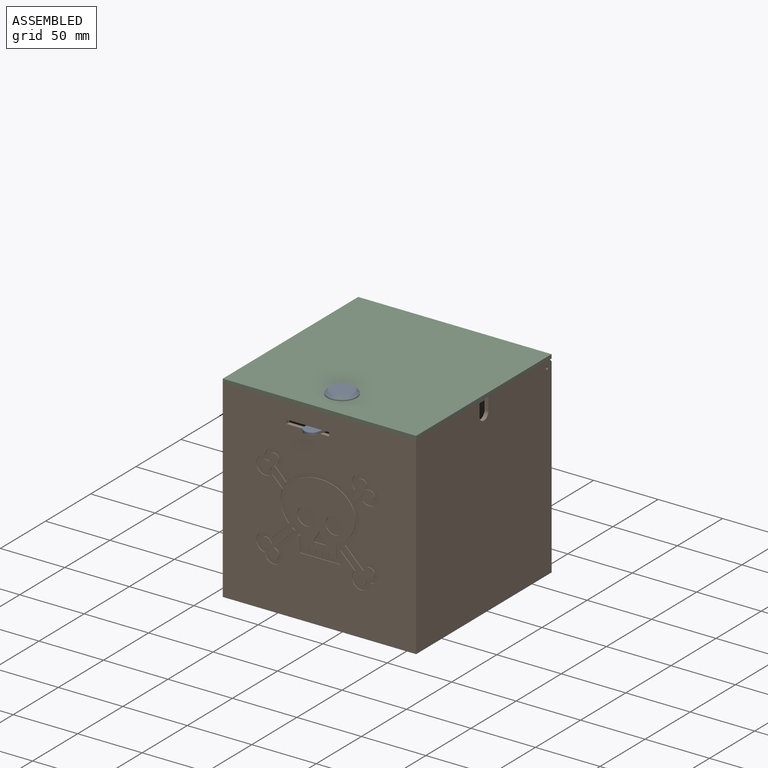
[diagram: assembled view]
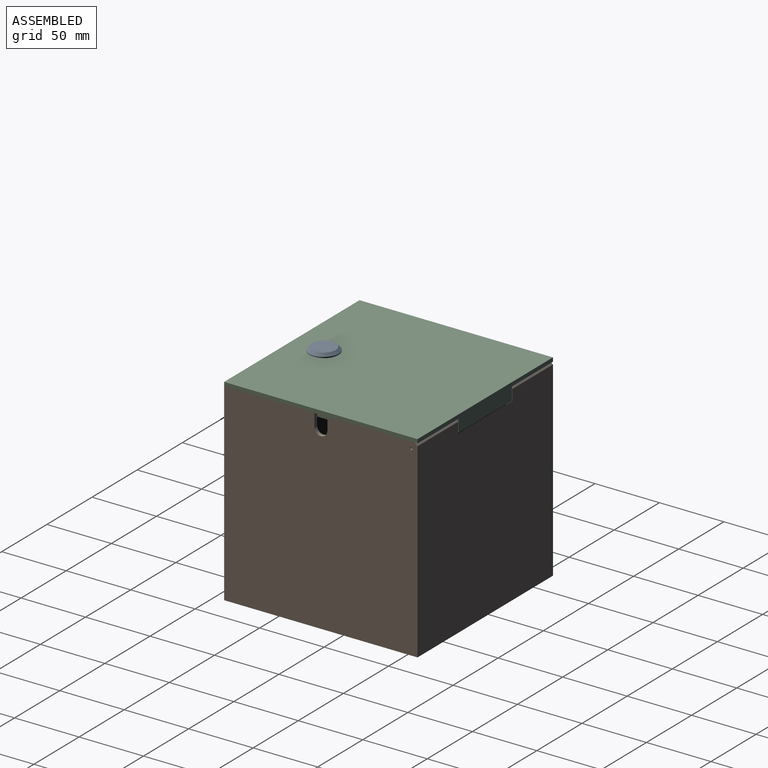
[diagram: assembled view, second angle]
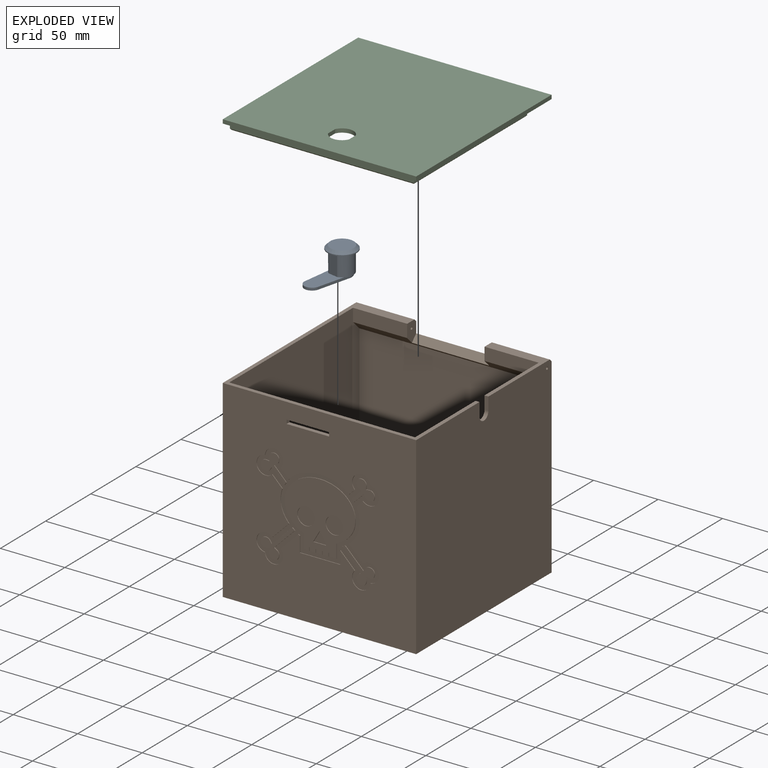
[diagram: exploded view]
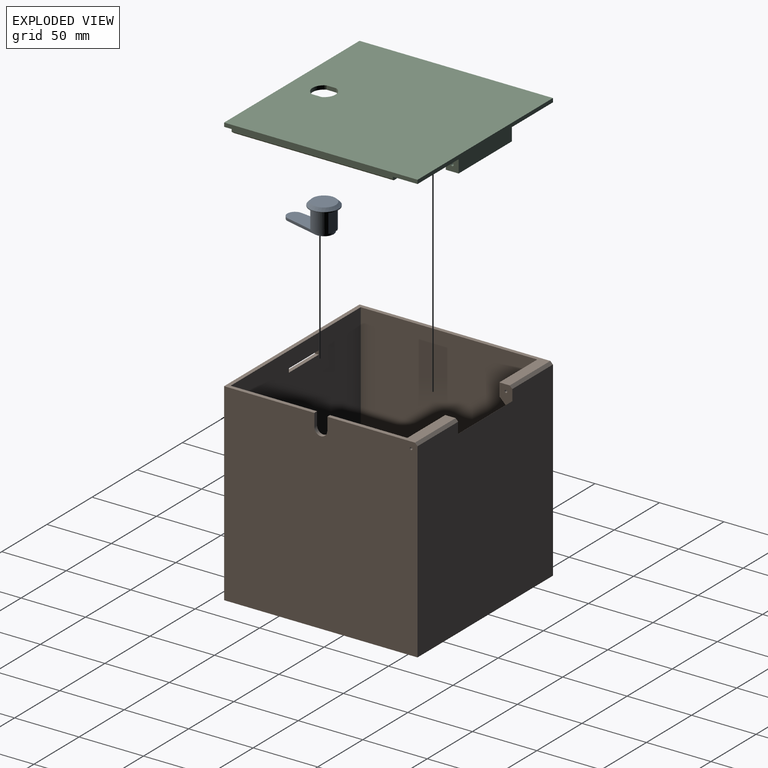
[diagram: exploded view, second angle]
ASSEMBLY  parts=3 mates=2
PART A: 15 faces, bbox 43.8x22.6x20.9 mm
  f0: cylinder r=8.8mm len=16mm, axis (0,0,1), area 315.7mm2, adj f1,f5,f7,f8,f9
  f1: plane 17.6x12.96mm, normal (0,0,-1), area 38.1mm2, adj f0,f6,f7,f10,f11,f13
  f2: cone r=11.3mm half-angle=45deg, axis (0,0,-1), area 199.4mm2, adj f3,f4
  f3: plane 18.2x18.2mm, normal (0,0,1), area 260.2mm2, adj f2
  f4: cylinder r=11.3mm len=22.6mm, axis (0,0,1), area 49.7mm2, adj f2,f5
  f5: plane 22.6x22.6mm, normal (0,0,-1), area 166.9mm2, adj f0,f4,f6,f7,f8
  f6: cylinder r=8.8mm len=16mm, axis (0,0,1), area 315.7mm2, adj f1,f5,f7,f8,f9
  f7: plane 16x7.65mm, normal (1,0,0), area 122.4mm2, adj f0,f1,f5,f6
  f8: plane 16x7.65mm, normal (-1,0,0), area 122.4mm2, adj f0,f5,f6,f9
  f9: plane 27.48x14.44mm, normal (0,0,1), area 306.7mm2, adj f0,f6,f8,f11,f12,f13
  f10: cylinder r=7.5mm len=15mm, axis (0,0,1), area 49.7mm2, adj f1,f11,f13,f14
  f11: plane 25.65x2mm, normal (-0.06,-1,0), area 51.4mm2, adj f1,f9,f10,f12,f14
  f12: cylinder r=6mm len=12mm, axis (0,0,1), area 37.7mm2, adj f9,f11,f13,f14
  f13: plane 26.07x2mm, normal (-0.06,1,0), area 52.2mm2, adj f1,f9,f10,f12,f14
  f14: plane 40x15mm, normal (0,0,-1), area 502.8mm2, adj f10,f11,f12,f13
PART B: 281 faces, bbox 150x150x150 mm
  f0: plane 150x150mm, normal (0,-1,0), area 18094.8mm2, adj f2,f6,f8,f9,f23,f24,f25,f26
  f1: plane 147x144mm, normal (0,1,0), area 21069mm2, adj f2,f4,f10,f11,f23,f24,f25,f26
  f2: plane 150x148mm, normal (0,0,1), area 1422mm2, adj f0,f1,f4,f6,f8,f10,f15,f18
  f3: plane 144x130mm, normal (0,-1,0), area 18720mm2, adj f4,f10,f11,f280
  f4: plane 147x144mm, normal (-1,0,0), area 20934.2mm2, adj f1,f2,f3,f5,f11,f15,f16,f17
  f5: plane 68x45mm, normal (0,0,1), area 540mm2, adj f4,f8,f17,f20,f21,f279
  f6: plane 150x150mm, normal (-1,0,0), area 20129.9mm2, adj f0,f2,f7,f9,f11,f12,f13,f14
  f7: plane 150x148mm, normal (0,1,0), area 21690mm2, adj f6,f8,f9,f18,f20,f22,f278,f279
  f8: plane 150x150mm, normal (1,0,0), area 22355.6mm2, adj f0,f2,f5,f7,f9,f15,f16,f17
  f9: plane 150x150mm, normal (0,0,-1), area 22500mm2, adj f0,f6,f7,f8
  f10: plane 147x144mm, normal (1,0,0), area 18708.5mm2, adj f1,f2,f3,f11,f12,f13,f14,f19
  f11: plane 147x144mm, normal (0,0,1), area 20901mm2, adj f1,f3,f4,f6,f10,f12,f14
  f12: plane 43x3mm, normal (0,1,0), area 129mm2, adj f6,f10,f11,f13
  f13: plane 55x3mm, normal (0,0,-1), area 165mm2, adj f6,f10,f12,f14
  f14: plane 43x3mm, normal (0,-1,0), area 129mm2, adj f6,f10,f11,f13
  f15: plane 10x3mm, normal (0,1,0), area 30mm2, adj f2,f4,f8,f16
  f16: cylinder r=5mm len=10mm, axis (1,0,0), area 47.1mm2, adj f4,f8,f15,f17
  f17: plane 10x3mm, normal (0,-1,0), area 30mm2, adj f4,f5,f8,f16
  f18: plane 15.25x10mm, normal (1,0,0), area 122.3mm2, adj f2,f7,f19,f22,f28,f278,f280
  f19: plane 42x10mm, normal (0,-1,0), area 420mm2, adj f2,f10,f18,f280
  f20: plane 15.25x10mm, normal (-1,0,0), area 122.3mm2, adj f5,f7,f21,f22,f27,f279,f280
  f21: plane 42x10mm, normal (0,-1,0), area 420mm2, adj f4,f5,f20,f280
  f22: plane 60x4.75mm, normal (0,-0.71,0.71), area 403.1mm2, adj f7,f18,f20,f280
  f23: plane 33x3mm, normal (0,0,-1), area 99mm2, adj f0,f1,f24,f26
  f24: plane 3x3mm, normal (1,0,0), area 9mm2, adj f0,f1,f23,f25
  f25: plane 33x3mm, normal (0,0,1), area 99mm2, adj f0,f1,f24,f26
  f26: plane 3x3mm, normal (-1,0,0), area 9mm2, adj f0,f1,f23,f25
  f27: cylinder r=1mm len=45mm, axis (1,0,0), area 282.7mm2, adj f8,f20
  f28: cylinder r=1mm len=45mm, axis (1,0,0), area 282.7mm2, adj f6,f18
  f29: plane 5.59x5.59mm, normal (0.71,0,0.71), area 4mm2, adj f0,f30,f240,f241
  f30: plane 5.59x5.59mm, normal (0.71,0,0.71), area 4mm2, adj f0,f29,f31,f241
  f31: plane 0.64x0.5mm, normal (0.8,0,-0.6), area 0.4mm2, adj f0,f30,f32,f241
  f32: extruded ~2.42x1.25mm, area 1.4mm2, adj f0,f31,f33,f241
  f33: extruded ~1.98x0.5mm, area 1mm2, adj f0,f32,f34,f241
  f34: extruded ~3.26x0.7mm, area 1.7mm2, adj f0,f33,f35,f241
  f35: extruded ~3.31x3.25mm, area 2.4mm2, adj f0,f34,f36,f241
  f36: plane 0.9x0.5mm, normal (0.44,0,0.9), area 0.5mm2, adj f0,f35,f37,f241
  f37: extruded ~3.91x0.5mm, area 2mm2, adj f0,f36,f38,f241
  f38: plane 0.73x0.5mm, normal (-0.37,0,0.93), area 0.4mm2, adj f0,f37,f39,f241
  f39: extruded ~3.43x2.83mm, area 2.3mm2, adj f0,f38,f40,f241
  f40: extruded ~2.87x1.05mm, area 1.5mm2, adj f0,f39,f41,f241
  f41: extruded ~0.87x0.5mm, area 0.6mm2, adj f0,f40,f42,f241
  f42: extruded ~5.09x4.24mm, area 3.5mm2, adj f0,f41,f43,f241
  f43: extruded ~5.15x0.5mm, area 2.6mm2, adj f0,f42,f44,f241
  f44: extruded ~3.97x3.97mm, area 2.9mm2, adj f0,f43,f45,f241
  f45: extruded ~7.39x1.69mm, area 3.9mm2, adj f0,f44,f46,f241
  f46: plane 0.5x0.38mm, normal (0.65,0,-0.76), area 0.2mm2, adj f0,f45,f47,f241
  f47: plane 5.52x5.52mm, normal (-0.71,0,-0.71), area 3.9mm2, adj f0,f46,f48,f241
  f48: plane 5.52x5.52mm, normal (-0.71,0,-0.71), area 3.9mm2, adj f0,f47,f49,f241
  f49: plane 1.2x1.19mm, normal (-0.7,0,0.71), area 0.8mm2, adj f0,f48,f50,f241
  f50: extruded ~13.71x7.03mm, area 7.9mm2, adj f0,f49,f51,f241
  f51: extruded ~5.61x0.5mm, area 2.8mm2, adj f0,f50,f52,f241
  f52: extruded ~6.34x1.93mm, area 3.3mm2, adj f0,f51,f53,f241
  f53: plane 0.93x0.5mm, normal (-0.9,0,-0.43), area 0.5mm2, adj f0,f52,f54,f241
  f54: plane 2.62x2.62mm, normal (-0.71,0,0.71), area 1.8mm2, adj f0,f53,f55,f241
  f55: plane 2.62x2.62mm, normal (-0.71,0,0.71), area 1.8mm2, adj f0,f54,f56,f241
  f56: plane 0.5x0.26mm, normal (0.63,0,0.78), area 0.2mm2, adj f0,f55,f57,f241
  f57: extruded ~3.05x1.59mm, area 1.7mm2, adj f0,f56,f58,f241
  f58: extruded ~3.5x0.5mm, area 1.8mm2, adj f0,f57,f59,f241
  f59: extruded ~5.02x4.58mm, area 3.5mm2, adj f0,f58,f60,f241
  f60: extruded ~4.6x0.5mm, area 2.4mm2, adj f0,f59,f61,f241
  f61: extruded ~5.7x4.73mm, area 3.9mm2, adj f0,f60,f62,f241
  f62: extruded ~0.5x0.35mm, area 0.3mm2, adj f0,f61,f63,f241
  f63: extruded ~0.92x0.5mm, area 0.5mm2, adj f0,f62,f64,f241
  f64: extruded ~4.74x4.29mm, area 3.3mm2, adj f0,f63,f65,f241
  f65: extruded ~5.25x0.5mm, area 2.7mm2, adj f0,f64,f66,f241
  f66: extruded ~5.2x4.22mm, area 3.5mm2, adj f0,f65,f67,f241
  f67: extruded ~3.32x0.5mm, area 1.7mm2, adj f0,f66,f68,f241
  f68: extruded ~2.44x1.21mm, area 1.4mm2, adj f0,f67,f69,f241
  f69: extruded ~0.62x0.5mm, area 0.4mm2, adj f0,f68,f70,f241
  f70: extruded ~2.38x2.17mm, area 1.6mm2, adj f0,f69,f71,f241
  f71: plane 2.25x2.25mm, normal (0.71,0,-0.71), area 1.6mm2, adj f0,f70,f72,f241
  f72: plane 0.96x0.77mm, normal (-0.63,0,-0.78), area 0.6mm2, adj f0,f71,f73,f241
  f73: extruded ~17.64x7.01mm, area 9.6mm2, adj f0,f72,f74,f241
  f74: extruded ~7.04x0.5mm, area 3.5mm2, adj f0,f73,f75,f241
  f75: extruded ~20.1x8.77mm, area 11.2mm2, adj f0,f74,f76,f241
  f76: plane 1x0.96mm, normal (0.69,0,-0.72), area 0.7mm2, adj f0,f75,f77,f241
  f77: plane 3.2x3.2mm, normal (-0.71,0,-0.71), area 2.3mm2, adj f0,f76,f78,f241
  f78: extruded ~3.33x3.12mm, area 2.3mm2, adj f0,f77,f79,f241
  f79: extruded ~0.62x0.5mm, area 0.4mm2, adj f0,f78,f80,f241
  f80: extruded ~2.44x1.21mm, area 1.4mm2, adj f0,f79,f81,f241
  f81: extruded ~3.32x0.5mm, area 1.7mm2, adj f0,f80,f82,f241
  f82: extruded ~5.02x3.82mm, area 3.3mm2, adj f0,f81,f83,f241
  f83: plane 0.9x0.5mm, normal (-0.44,0,-0.9), area 0.5mm2, adj f0,f82,f84,f241
  f84: extruded ~4.02x0.5mm, area 2mm2, adj f0,f83,f85,f241
  f85: plane 0.74x0.5mm, normal (0.36,0,-0.93), area 0.4mm2, adj f0,f84,f86,f241
  f86: extruded ~5.13x4.26mm, area 3.5mm2, adj f0,f85,f87,f241
  f87: plane 0.72x0.5mm, normal (0.98,0,-0.2), area 0.4mm2, adj f0,f86,f88,f241
  f88: plane 0.77x0.5mm, normal (0.2,0,-0.98), area 0.4mm2, adj f0,f87,f89,f241
  f89: extruded ~3.18x1.54mm, area 1.8mm2, adj f0,f88,f90,f241
  f90: extruded ~3.1x2.17mm, area 1.9mm2, adj f0,f89,f91,f241
  f91: extruded ~4.6x0.5mm, area 2.3mm2, adj f0,f90,f92,f241
  f92: extruded ~5.02x4.58mm, area 3.5mm2, adj f0,f91,f93,f241
  f93: extruded ~3.5x0.5mm, area 1.8mm2, adj f0,f92,f94,f241
  f94: extruded ~3.05x1.59mm, area 1.7mm2, adj f0,f93,f95,f241
  f95: plane 0.5x0.26mm, normal (-0.63,0,0.78), area 0.2mm2, adj f0,f94,f96,f241
  f96: plane 3.92x3.92mm, normal (0.71,0,0.71), area 2.8mm2, adj f0,f95,f97,f241
  f97: plane 3.92x3.92mm, normal (0.71,0,0.71), area 2.8mm2, adj f0,f96,f98,f241
  f98: plane 0.84x0.5mm, normal (0.95,0,-0.32), area 0.4mm2, adj f0,f97,f99,f241
  f99: extruded ~3.79x0.91mm, area 2mm2, adj f0,f98,f100,f241
  f100: extruded ~5.94x0.5mm, area 3mm2, adj f0,f99,f101,f241
  f101: extruded ~12.01x5.77mm, area 6.8mm2, adj f0,f100,f102,f241
  f102: plane 0.64x0.56mm, normal (0.75,0,0.66), area 0.4mm2, adj f0,f101,f103,f241
  f103: plane 6.49x6.49mm, normal (0.71,0,-0.71), area 4.6mm2, adj f0,f102,f104,f241
  f104: plane 6.49x6.49mm, normal (0.71,0,-0.71), area 4.6mm2, adj f0,f103,f105,f241
  f105: plane 0.5x0.26mm, normal (-0.67,0,-0.74), area 0.2mm2, adj f0,f104,f106,f241
  f106: extruded ~2.72x1.5mm, area 1.6mm2, adj f0,f105,f107,f241
  f107: extruded ~3.52x0.5mm, area 1.8mm2, adj f0,f106,f108,f241
  f108: extruded ~5.23x4.35mm, area 3.5mm2, adj f0,f107,f109,f241
  f109: extruded ~5.13x0.5mm, area 2.6mm2, adj f0,f108,f110,f241
  f110: extruded ~5.31x4.3mm, area 3.6mm2, adj f0,f109,f111,f241
  f111: plane 0.72x0.5mm, normal (0.16,0,0.99), area 0.4mm2, adj f0,f110,f112,f241
  f112: plane 0.72x0.5mm, normal (0.99,0,0.16), area 0.4mm2, adj f0,f111,f113,f241
  f113: extruded ~5.31x4.28mm, area 3.6mm2, adj f0,f112,f114,f241
  f114: plane 0.69x0.5mm, normal (0.38,0,0.92), area 0.4mm2, adj f0,f113,f115,f241
  f115: extruded ~3.97x0.5mm, area 2mm2, adj f0,f114,f116,f241
  f116: plane 0.9x0.5mm, normal (-0.44,0,0.9), area 0.5mm2, adj f0,f115,f117,f241
  f117: extruded ~3.31x3.25mm, area 2.4mm2, adj f0,f116,f118,f241
  f118: extruded ~3.26x0.7mm, area 1.7mm2, adj f0,f117,f119,f241
  f119: extruded ~1.98x0.5mm, area 1mm2, adj f0,f118,f120,f241
  f120: extruded ~2.42x1.25mm, area 1.4mm2, adj f0,f119,f121,f241
  f121: plane 0.64x0.5mm, normal (-0.8,0,-0.6), area 0.4mm2, adj f0,f120,f122,f241
  f122: plane 6.9x6.9mm, normal (-0.71,0,0.71), area 4.9mm2, adj f0,f121,f123,f241
  f123: plane 6.9x6.9mm, normal (-0.71,0,0.71), area 4.9mm2, adj f0,f122,f124,f241
  f124: plane 1.35x0.68mm, normal (0.45,0,0.89), area 0.8mm2, adj f0,f123,f125,f241
  f125: plane 11.91x0.5mm, normal (1,0,0), area 6mm2, adj f0,f124,f126,f241
  f126: plane 31.29x0.5mm, normal (0,0,1), area 15.6mm2, adj f0,f125,f240,f241
  f127: extruded ~3.32x0.5mm, area 1.7mm2, adj f128,f235,f241,f246
  f128: extruded ~4.31x2.37mm, area 2.6mm2, adj f127,f129,f241,f246
  f129: extruded ~3.12x2.72mm, area 2.2mm2, adj f128,f130,f241,f246
  f130: extruded ~2.68x0.5mm, area 1.4mm2, adj f129,f131,f241,f246
  f131: extruded ~2.52x2.41mm, area 1.8mm2, adj f130,f132,f241,f246
  f132: extruded ~1.04x0.65mm, area 0.6mm2, adj f131,f133,f241,f246
  f133: extruded ~7.3x7.19mm, area 5.1mm2, adj f132,f134,f241,f246
  f134: extruded ~7.39x7.23mm, area 5.2mm2, adj f133,f135,f241,f246
  f135: extruded ~0.5x0.17mm, area 0.1mm2, adj f134,f136,f241,f246
  f136: extruded ~1.04x0.61mm, area 0.6mm2, adj f135,f137,f241,f246
  f137: extruded ~1.08x0.61mm, area 0.6mm2, adj f136,f138,f241,f246
  f138: extruded ~7.15x7.04mm, area 5mm2, adj f137,f139,f241,f246
  f139: extruded ~7.11x7mm, area 5mm2, adj f138,f140,f241,f246
  f140: extruded ~1.12x0.7mm, area 0.7mm2, adj f139,f141,f241,f246
  f141: extruded ~3.23x2.5mm, area 2.1mm2, adj f140,f142,f241,f246
  f142: extruded ~3.49x1.08mm, area 1.9mm2, adj f141,f143,f241,f246
  f143: extruded ~5.6x1.23mm, area 3.1mm2, adj f142,f144,f241,f246
  f144: extruded ~4.35x1.09mm, area 2.3mm2, adj f143,f145,f241,f246
  f145: extruded ~1.2x0.5mm, area 0.6mm2, adj f144,f235,f241,f246
  f146: extruded ~3.29x1mm, area 1.8mm2, adj f147,f236,f241,f245
  f147: extruded ~2.86x2.11mm, area 1.8mm2, adj f146,f148,f241,f245
  f148: extruded ~4x0.5mm, area 2mm2, adj f147,f149,f241,f245
  f149: plane 0.76x0.5mm, normal (-0.99,0,0.16), area 0.4mm2, adj f148,f150,f241,f245
  f150: plane 1.14x0.5mm, normal (0.16,0,-0.99), area 0.6mm2, adj f149,f151,f241,f245
  f151: extruded ~2.09x0.5mm, area 1mm2, adj f150,f152,f241,f245
  f152: extruded ~1.57x0.5mm, area 0.8mm2, adj f151,f153,f241,f245
  f153: extruded ~6.35x2.11mm, area 3.7mm2, adj f152,f154,f241,f245
  f154: extruded ~3.49x1.08mm, area 1.9mm2, adj f153,f155,f241,f245
  f155: extruded ~3.23x2.5mm, area 2.1mm2, adj f154,f156,f241,f245
  f156: extruded ~1.12x0.7mm, area 0.7mm2, adj f155,f157,f241,f245
  f157: extruded ~7.96x7.85mm, area 5.6mm2, adj f156,f158,f241,f245
  f158: extruded ~8x7.89mm, area 5.6mm2, adj f157,f159,f241,f245
  f159: extruded ~2.02x1.6mm, area 1.3mm2, adj f158,f160,f241,f245
  f160: extruded ~8.13x7.98mm, area 5.7mm2, adj f159,f161,f241,f245
  f161: extruded ~8.05x7.94mm, area 5.7mm2, adj f160,f162,f241,f245
  f162: extruded ~1.04x0.65mm, area 0.6mm2, adj f161,f163,f241,f245
  f163: extruded ~1.94x1.58mm, area 1.3mm2, adj f162,f164,f241,f245
  f164: extruded ~2.3x0.65mm, area 1.2mm2, adj f163,f236,f241,f245
  f165: plane 4.16x0.5mm, normal (0,0,-1), area 2.1mm2, adj f166,f237,f241,f244
  f166: plane 10.75x0.5mm, normal (-1,0,0), area 5.4mm2, adj f165,f167,f241,f244
  f167: plane 1.06x0.5mm, normal (-0.43,0,-0.91), area 0.6mm2, adj f166,f168,f241,f244
  f168: extruded ~14x13.11mm, area 9.9mm2, adj f167,f169,f241,f244
  f169: extruded ~5.93x0.75mm, area 3mm2, adj f168,f170,f241,f244
  f170: extruded ~7.45x1.86mm, area 3.9mm2, adj f169,f171,f241,f244
  f171: extruded ~6.05x4.46mm, area 3.8mm2, adj f170,f172,f241,f244
  f172: extruded ~17.29x7.77mm, area 9.6mm2, adj f171,f173,f241,f244
  f173: extruded ~7.85x0.5mm, area 3.9mm2, adj f172,f174,f241,f244
  f174: extruded ~21.25x13.11mm, area 13mm2, adj f173,f175,f241,f244
  f175: extruded ~19.29x3.17mm, area 10.1mm2, adj f174,f176,f241,f244
  f176: extruded ~10.51x8.79mm, area 6.9mm2, adj f175,f177,f241,f244
  f177: plane 1.06x0.5mm, normal (0.43,0,-0.91), area 0.6mm2, adj f176,f178,f241,f244
  f178: plane 10.75x0.5mm, normal (1,0,0), area 5.4mm2, adj f177,f179,f241,f244
  f179: plane 5.11x0.5mm, normal (0,0,-1), area 2.6mm2, adj f178,f180,f241,f244
  f180: plane 2.74x0.5mm, normal (-1,0,0), area 1.4mm2, adj f179,f181,f241,f244
  f181: plane 1.04x0.5mm, normal (0,0,-1), area 0.5mm2, adj f180,f182,f241,f244
  f182: plane 2.74x0.5mm, normal (1,0,0), area 1.4mm2, adj f181,f183,f241,f244
  f183: plane 3.97x0.5mm, normal (0,0,-1), area 2mm2, adj f182,f184,f241,f244
  f184: plane 2.74x0.5mm, normal (-1,0,0), area 1.4mm2, adj f183,f185,f241,f244
  f185: plane 1.04x0.5mm, normal (0,0,-1), area 0.5mm2, adj f184,f186,f241,f244
  f186: plane 2.74x0.5mm, normal (1,0,0), area 1.4mm2, adj f185,f187,f241,f244
  f187: plane 3.97x0.5mm, normal (0,0,-1), area 2mm2, adj f186,f188,f241,f244
  f188: plane 2.74x0.5mm, normal (-1,0,0), area 1.4mm2, adj f187,f189,f241,f244
  f189: plane 1.04x0.5mm, normal (0,0,-1), area 0.5mm2, adj f188,f190,f241,f244
  f190: plane 2.74x0.5mm, normal (1,0,0), area 1.4mm2, adj f189,f191,f241,f244
  f191: plane 3.97x0.5mm, normal (0,0,-1), area 2mm2, adj f190,f192,f241,f244
  f192: plane 2.74x0.5mm, normal (-1,0,0), area 1.4mm2, adj f191,f193,f241,f244
  f193: plane 0.95x0.5mm, normal (0,0,-1), area 0.5mm2, adj f192,f237,f241,f244
  f194: extruded ~1.81x0.5mm, area 0.9mm2, adj f195,f238,f241,f243
  f195: extruded ~1.82x0.5mm, area 0.9mm2, adj f194,f196,f241,f243
  f196: extruded ~2.23x2.11mm, area 1.6mm2, adj f195,f197,f241,f243
  f197: plane 1.11x0.66mm, normal (0.51,0,-0.86), area 0.6mm2, adj f196,f198,f241,f243
  f198: plane 4.68x4.68mm, normal (0.71,0,0.71), area 3.3mm2, adj f197,f199,f241,f243
  f199: extruded ~4.86x4.68mm, area 3.4mm2, adj f198,f200,f241,f243
  f200: extruded ~0.98x0.53mm, area 0.6mm2, adj f199,f201,f241,f243
  f201: extruded ~1.03x0.63mm, area 0.6mm2, adj f200,f202,f241,f243
  f202: extruded ~0.5x0.26mm, area 0.2mm2, adj f201,f203,f241,f243
  f203: extruded ~5.02x4.87mm, area 3.5mm2, adj f202,f204,f241,f243
  f204: extruded ~4.92x4.87mm, area 3.5mm2, adj f203,f205,f241,f243
  f205: extruded ~1.21x0.77mm, area 0.7mm2, adj f204,f206,f241,f243
  f206: extruded ~3.6x2.46mm, area 2.3mm2, adj f205,f207,f241,f243
  f207: extruded ~4.23x3.33mm, area 3mm2, adj f206,f208,f241,f243
  f208: extruded ~4.6x3.53mm, area 3.2mm2, adj f207,f209,f241,f243
  f209: extruded ~1.99x0.5mm, area 1mm2, adj f208,f210,f241,f243
  f210: extruded ~1.31x0.5mm, area 0.7mm2, adj f209,f211,f241,f243
  f211: extruded ~1.18x0.5mm, area 0.6mm2, adj f210,f212,f241,f243
  f212: extruded ~3.32x0.5mm, area 1.7mm2, adj f211,f213,f241,f243
  f213: extruded ~1.64x1.61mm, area 1.2mm2, adj f212,f214,f241,f243
  f214: extruded ~3.7x0.5mm, area 1.9mm2, adj f213,f238,f241,f243
  f215: extruded ~0.97x0.85mm, area 0.6mm2, adj f216,f239,f241,f242
  f216: extruded ~1.09x0.79mm, area 0.7mm2, adj f215,f217,f241,f242
  f217: extruded ~3.78x3.62mm, area 2.6mm2, adj f216,f218,f241,f242
  f218: plane 3.65x3.65mm, normal (-0.71,0,0.71), area 2.6mm2, adj f217,f219,f241,f242
  f219: plane 1.11x0.66mm, normal (-0.51,0,-0.86), area 0.6mm2, adj f218,f220,f241,f242
  f220: extruded ~2.23x2.11mm, area 1.6mm2, adj f219,f221,f241,f242
  f221: extruded ~1.82x0.5mm, area 0.9mm2, adj f220,f222,f241,f242
  f222: extruded ~1.8x0.5mm, area 0.9mm2, adj f221,f223,f241,f242
  f223: extruded ~3.01x2.16mm, area 1.9mm2, adj f222,f224,f241,f242
  f224: extruded ~3.79x1.58mm, area 2.2mm2, adj f223,f225,f241,f242
  f225: extruded ~3.99x0.77mm, area 2.1mm2, adj f224,f226,f241,f242
  f226: extruded ~1x0.5mm, area 0.5mm2, adj f225,f227,f241,f242
  f227: extruded ~0.92x0.5mm, area 0.5mm2, adj f226,f228,f241,f242
  f228: extruded ~1.87x0.5mm, area 0.9mm2, adj f227,f229,f241,f242
  f229: extruded ~1.58x0.5mm, area 0.8mm2, adj f228,f230,f241,f242
  f230: extruded ~4.23x2.28mm, area 2.6mm2, adj f229,f231,f241,f242
  f231: extruded ~4.23x3.33mm, area 3mm2, adj f230,f232,f241,f242
  f232: extruded ~3.57x2.39mm, area 2.3mm2, adj f231,f233,f241,f242
  f233: extruded ~1.23x0.73mm, area 0.7mm2, adj f232,f234,f241,f242
  f234: extruded ~3.81x3.66mm, area 2.6mm2, adj f233,f239,f241,f242
  f235: extruded ~1.12x0.5mm, area 0.6mm2, adj f127,f145,f241,f246
  f236: extruded ~3.11x1.27mm, area 1.7mm2, adj f146,f164,f241,f245
  f237: plane 2.74x0.5mm, normal (1,0,0), area 1.4mm2, adj f165,f193,f241,f244
  f238: extruded ~1.84x1.79mm, area 1.3mm2, adj f194,f214,f241,f243
  f239: extruded ~3.86x3.75mm, area 2.7mm2, adj f215,f234,f241,f242
  f240: plane 9.98x0.5mm, normal (-1,0,0), area 5mm2, adj f0,f29,f126,f241
  f241: plane 94.81x81.08mm, normal (0,-1,0), area 1546.6mm2, adj f29,f30,f31,f32,f33,f34,f35,f36
  f242: plane 18.19x18.04mm, normal (0,-1,0), area 140mm2, adj f215,f216,f217,f218,f219,f220,f221,f222
  f243: plane 20.44x20.17mm, normal (0,-1,0), area 147.9mm2, adj f194,f195,f196,f197,f198,f199,f200,f201
  f244: plane 55.4x52.67mm, normal (0,-1,0), area 1809.9mm2, adj f165,f166,f167,f168,f169,f170,f171,f172
  f245: plane 26.89x26.48mm, normal (0,-1,0), area 171.1mm2, adj f146,f147,f148,f149,f150,f151,f152,f153
  f246: plane 25.31x24.85mm, normal (0,-1,0), area 165.6mm2, adj f127,f128,f129,f130,f131,f132,f133,f134
  f247: extruded ~6.3x5.41mm, area 4.5mm2, adj f244,f248,f256,f257
  f248: extruded ~2.67x0.5mm, area 1.3mm2, adj f244,f247,f249,f257
  f249: extruded ~5.05x4.78mm, area 3.6mm2, adj f244,f248,f250,f257
  f250: extruded ~3.73x0.5mm, area 1.9mm2, adj f244,f249,f251,f257
  f251: extruded ~2.74x1.72mm, area 1.6mm2, adj f244,f250,f252,f257
  f252: extruded ~2.74x1.72mm, area 1.6mm2, adj f244,f251,f253,f257
  f253: extruded ~1.94x0.5mm, area 1mm2, adj f244,f252,f254,f257
  f254: extruded ~1.94x0.5mm, area 1mm2, adj f244,f253,f255,f257
  f255: extruded ~4.06x3.49mm, area 2.8mm2, adj f244,f254,f256,f257
  f256: extruded ~3.23x0.7mm, area 1.7mm2, adj f244,f247,f255,f257
  f257: plane 13.49x13.4mm, normal (0,-1,0), area 140.3mm2, adj f247,f248,f249,f250,f251,f252,f253,f254
  f258: plane 10.1x0.5mm, normal (0,0,1), area 5mm2, adj f244,f259,f264,f265
  f259: plane 2.2x1.27mm, normal (-0.87,0,-0.5), area 1.3mm2, adj f244,f258,f260,f265
  f260: extruded ~4.38x2.52mm, area 2.5mm2, adj f244,f259,f261,f265
  f261: plane 2.18x1.25mm, normal (-0.87,0,-0.5), area 1.3mm2, adj f244,f260,f262,f265
  f262: plane 2.61x1.5mm, normal (0.87,0,-0.5), area 1.5mm2, adj f244,f261,f263,f265
  f263: extruded ~4.38x2.53mm, area 2.5mm2, adj f244,f262,f264,f265
  f264: plane 1.77x1.02mm, normal (0.87,0,-0.5), area 1mm2, adj f244,f258,f263,f265
  f265: plane 10.1x8.76mm, normal (0,-1,0), area 44.2mm2, adj f258,f259,f260,f261,f262,f263,f264
  f266: extruded ~5.66x4.67mm, area 3.9mm2, adj f244,f267,f276,f277
  f267: extruded ~2.25x0.5mm, area 1.1mm2, adj f244,f266,f268,f277
  f268: extruded ~3.74x2.4mm, area 2.3mm2, adj f244,f267,f269,f277
  f269: extruded ~2.12x1.14mm, area 1.2mm2, adj f244,f268,f270,f277
  f270: extruded ~1.99x0.5mm, area 1mm2, adj f244,f269,f271,f277
  f271: extruded ~1.99x0.5mm, area 1mm2, adj f244,f270,f272,f277
  f272: extruded ~5.19x4.62mm, area 3.6mm2, adj f244,f271,f273,f277
  f273: extruded ~2.42x0.5mm, area 1.2mm2, adj f244,f272,f274,f277
  f274: extruded ~5.2x4.62mm, area 3.6mm2, adj f244,f273,f275,f277
  f275: extruded ~1.99x0.5mm, area 1mm2, adj f244,f274,f276,f277
  f276: extruded ~1.99x0.5mm, area 1mm2, adj f244,f266,f275,f277
  f277: plane 13.52x13.32mm, normal (0,-1,0), area 140.5mm2, adj f266,f267,f268,f269,f270,f271,f272,f273
  f278: plane 45x2mm, normal (0,0.71,0.71), area 127.3mm2, adj f2,f6,f7,f18
  f279: plane 45x2mm, normal (0,0.71,0.71), area 127.3mm2, adj f5,f7,f8,f20
  f280: plane 144x7mm, normal (0,-0.71,-0.71), area 980mm2, adj f3,f4,f10,f18,f19,f20,f21,f22
PART C: 34 faces, bbox 150x150x13 mm
  f0: plane 150x3mm, normal (0,1,0), area 450mm2, adj f1,f3,f4,f5
  f1: plane 150x3mm, normal (-1,0,0), area 450mm2, adj f0,f2,f4,f5
  f2: plane 150x13mm, normal (0,-1,0), area 1040mm2, adj f1,f3,f4,f5,f6,f8,f9
  f3: plane 150x3mm, normal (1,0,0), area 450mm2, adj f0,f2,f4,f5
  f4: plane 150x150mm, normal (0,0,1), area 22259.8mm2, adj f0,f1,f2,f3,f15,f16,f17,f18
  f5: plane 150x150mm, normal (0,0,-1), area 18780.8mm2, adj f0,f1,f2,f3,f6,f8,f14,f15
  f6: plane 15x10mm, normal (-1,0,0), area 108.3mm2, adj f2,f5,f7,f9,f13,f14
  f7: plane 59x5mm, normal (0,1,0), area 295mm2, adj f6,f8,f9,f14
  f8: plane 15x10mm, normal (1,0,0), area 108.3mm2, adj f2,f5,f7,f9,f11,f14
  f9: plane 59x10mm, normal (0,0,-1), area 590mm2, adj f2,f6,f7,f8
  f10: cone r=0mm half-angle=59deg, axis (1,0,0), area 4.8mm2, adj f11
  f11: cylinder r=1.15mm len=20mm, axis (1,0,0), area 144.5mm2, adj f8,f10
  f12: cone r=0mm half-angle=59deg, axis (-1,0,0), area 4.8mm2, adj f13
  f13: cylinder r=1.15mm len=20mm, axis (-1,0,0), area 144.5mm2, adj f6,f12
  f14: plane 59x5mm, normal (0,0.71,-0.71), area 417.2mm2, adj f5,f6,f7,f8
  f15: plane 7.59x3mm, normal (1,0,0), area 22.8mm2, adj f4,f5,f16,f18
  f16: cylinder r=8.9mm len=16.1mm, axis (0,0,1), area 60.4mm2, adj f4,f5,f15,f17
  f17: plane 7.59x3mm, normal (-1,0,0), area 22.8mm2, adj f4,f5,f16,f18
  f18: cylinder r=8.9mm len=16.1mm, axis (0,0,1), area 60.4mm2, adj f4,f5,f15,f17
  f19: plane 6.5x5mm, normal (0,-1,0), area 24mm2, adj f5,f20,f26,f27,f28,f31
  f20: plane 125x4mm, normal (-1,0,0), area 500mm2, adj f5,f19,f21,f31
  f21: plane 143x4mm, normal (0,1,0), area 572mm2, adj f5,f20,f22,f32
  f22: plane 125x4mm, normal (1,0,0), area 500mm2, adj f5,f21,f23,f33
  f23: plane 7x5mm, normal (0,-1,0), area 26.5mm2, adj f5,f22,f24,f27,f30,f33
  f24: plane 120x3mm, normal (-1,0,0), area 360mm2, adj f23,f25,f27,f30
  f25: plane 133.5x3mm, normal (0,-1,0), area 400.5mm2, adj f24,f26,f27,f29
  f26: plane 120x3mm, normal (1,0,0), area 360mm2, adj f19,f25,f27,f28
  f27: plane 141x124mm, normal (0,0,-1), area 1464mm2, adj f19,f23,f24,f25,f26,f31,f32,f33
  f28: plane 120x2mm, normal (0.71,0,-0.71), area 336.6mm2, adj f5,f19,f26,f29
  f29: plane 133.5x2mm, normal (0,-0.71,-0.71), area 371.9mm2, adj f5,f25,f28,f30
  f30: plane 120x2mm, normal (-0.71,0,-0.71), area 336.6mm2, adj f5,f23,f24,f29
  f31: plane 125x1mm, normal (-0.71,0,-0.71), area 176.1mm2, adj f19,f20,f27,f32
  f32: plane 143x1mm, normal (0,0.71,-0.71), area 200.8mm2, adj f21,f27,f31,f33
  f33: plane 125x1mm, normal (0.71,0,-0.71), area 176.1mm2, adj f22,f23,f27,f32
PLACE A rot(axis=(0,0,1),79deg) t=(0,-50,153.7)mm
PLACE B at identity fixed
PLACE C rot(axis=(0,0,1),180deg) t=(0,0,150)mm
MATE fastened C.f5 <-> B.f2  axis (0,0,-1) through (-75,-75,150)mm
MATE revolute C.f16 <-> A.f0  axis (0,0,1) through (0,-50,153)mm
